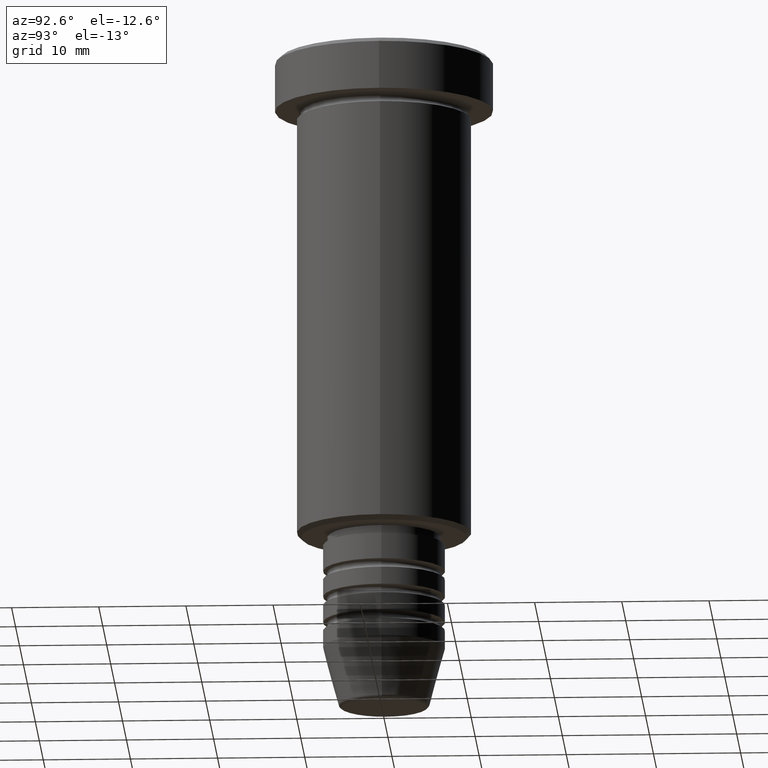
[diagram: clean part render]
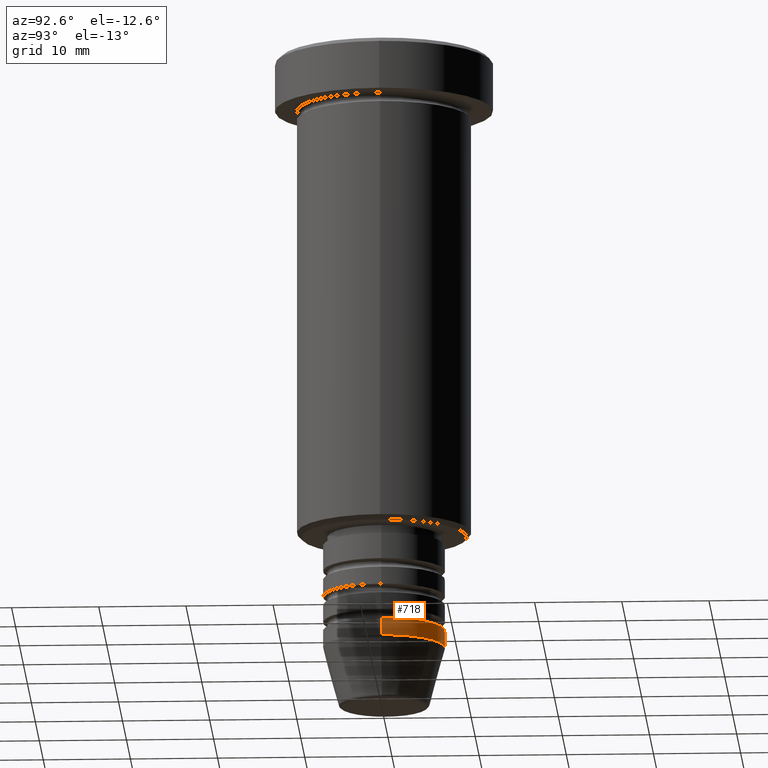
[diagram: same view with one face highlighted and labeled with its STEP entity id]
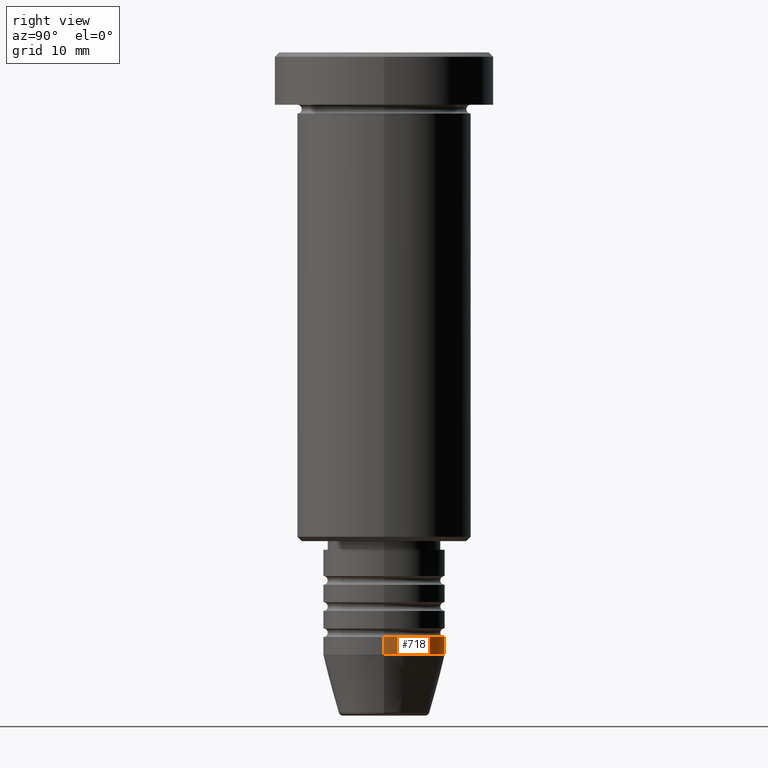
[diagram: same view with one face highlighted and labeled with its STEP entity id]
A machine part, auxiliary view. The second image highlights one B-rep face of the part: STEP entity #718.
A second angle (right view) of the same face is appended — the face is thin or edge-on in the first view.
In plain terms, the highlighted cylindrical surface (partial cylindrical patch) has radius 7 mm, axis along (-0, -0, 1).
Its self-contained STEP definition (entity closure, byte-faithful):
#37 = DIRECTION ( 'NONE',  ( -0.000000000000000000, -0.000000000000000000, 1.000000000000000000 ) ) ;
#82 = VERTEX_POINT ( 'NONE', #370 ) ;
#102 = EDGE_CURVE ( 'NONE', #1051, #1143, #1178, .T. ) ;
#134 = ORIENTED_EDGE ( 'NONE', *, *, #102, .T. ) ;
#182 = DIRECTION ( 'NONE',  ( -0.000000000000000000, -0.000000000000000000, 1.000000000000000000 ) ) ;
#201 = CARTESIAN_POINT ( 'NONE',  ( 0.000000000000000000, 0.000000000000000000, -69.00000000000000000 ) ) ;
#290 = LINE ( 'NONE', #648, #504 ) ;
#325 = EDGE_CURVE ( 'NONE', #82, #1051, #954, .T. ) ;
#332 = DIRECTION ( 'NONE',  ( -0.000000000000000000, -0.000000000000000000, 1.000000000000000000 ) ) ;
#370 = CARTESIAN_POINT ( 'NONE',  ( 7.000000000000000000, 0.000000000000000000, -69.00000000000000000 ) ) ;
#396 = CIRCLE ( 'NONE', #709, 7.000000000000000000 ) ;
#425 = CARTESIAN_POINT ( 'NONE',  ( 0.000000000000000000, 0.000000000000000000, -67.00000000000000000 ) ) ;
#452 = CARTESIAN_POINT ( 'NONE',  ( -7.000000000000000000, 8.572527594031473190E-16, 0.000000000000000000 ) ) ;
#504 = VECTOR ( 'NONE', #37, 1000.000000000000000 ) ;
#590 = EDGE_CURVE ( 'NONE', #1044, #1143, #396, .T. ) ;
#606 = CARTESIAN_POINT ( 'NONE',  ( -7.000000000000000000, 8.572527594031473190E-16, -69.00000000000000000 ) ) ;
#627 = FACE_OUTER_BOUND ( 'NONE', #1019, .T. ) ;
#648 = CARTESIAN_POINT ( 'NONE',  ( 7.000000000000000000, 0.000000000000000000, 0.000000000000000000 ) ) ;
#690 = DIRECTION ( 'NONE',  ( 1.000000000000000000, 0.000000000000000000, 0.000000000000000000 ) ) ;
#709 = AXIS2_PLACEMENT_3D ( 'NONE', #425, #332, #690 ) ;
#718 = ADVANCED_FACE ( 'NONE', ( #627 ), #999, .T. ) ;
#734 = DIRECTION ( 'NONE',  ( -0.000000000000000000, -0.000000000000000000, 1.000000000000000000 ) ) ;
#746 = EDGE_CURVE ( 'NONE', #82, #1044, #290, .T. ) ;
#776 = VECTOR ( 'NONE', #804, 1000.000000000000000 ) ;
#787 = ORIENTED_EDGE ( 'NONE', *, *, #325, .T. ) ;
#804 = DIRECTION ( 'NONE',  ( -0.000000000000000000, -0.000000000000000000, 1.000000000000000000 ) ) ;
#814 = DIRECTION ( 'NONE',  ( 1.000000000000000000, 0.000000000000000000, 0.000000000000000000 ) ) ;
#905 = CARTESIAN_POINT ( 'NONE',  ( 0.000000000000000000, 0.000000000000000000, 0.000000000000000000 ) ) ;
#939 = ORIENTED_EDGE ( 'NONE', *, *, #746, .F. ) ;
#954 = CIRCLE ( 'NONE', #971, 7.000000000000000000 ) ;
#971 = AXIS2_PLACEMENT_3D ( 'NONE', #201, #734, #814 ) ;
#988 = DIRECTION ( 'NONE',  ( 1.000000000000000000, 0.000000000000000000, 0.000000000000000000 ) ) ;
#999 = CYLINDRICAL_SURFACE ( 'NONE', #1116, 7.000000000000000000 ) ;
#1019 = EDGE_LOOP ( 'NONE', ( #787, #134, #1065, #939 ) ) ;
#1044 = VERTEX_POINT ( 'NONE', #1147 ) ;
#1050 = CARTESIAN_POINT ( 'NONE',  ( -7.000000000000000000, 8.572527594031473190E-16, -67.00000000000000000 ) ) ;
#1051 = VERTEX_POINT ( 'NONE', #606 ) ;
#1065 = ORIENTED_EDGE ( 'NONE', *, *, #590, .F. ) ;
#1116 = AXIS2_PLACEMENT_3D ( 'NONE', #905, #182, #988 ) ;
#1143 = VERTEX_POINT ( 'NONE', #1050 ) ;
#1147 = CARTESIAN_POINT ( 'NONE',  ( 7.000000000000000000, 0.000000000000000000, -67.00000000000000000 ) ) ;
#1178 = LINE ( 'NONE', #452, #776 ) ;